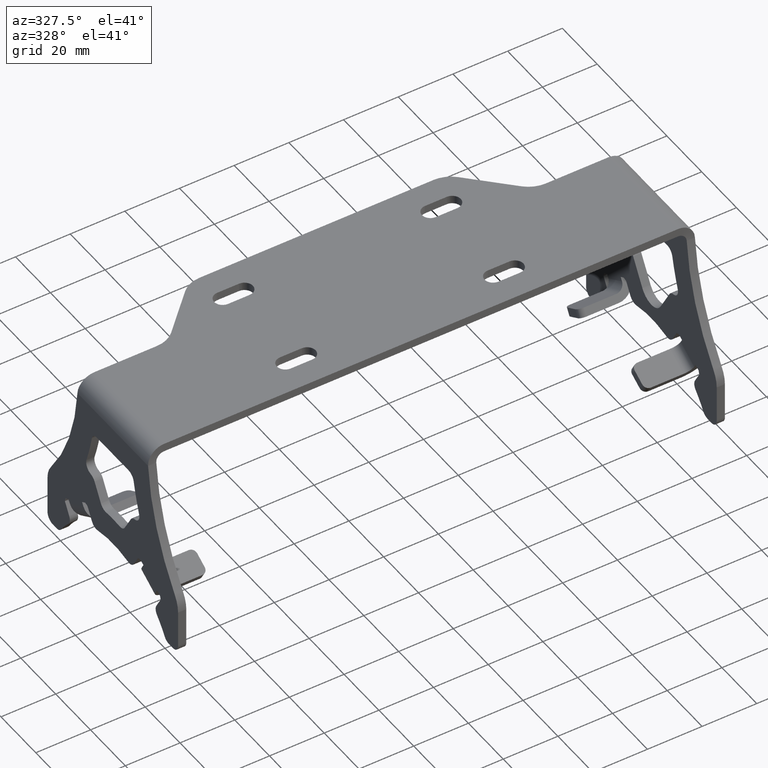
[diagram: clean part render]
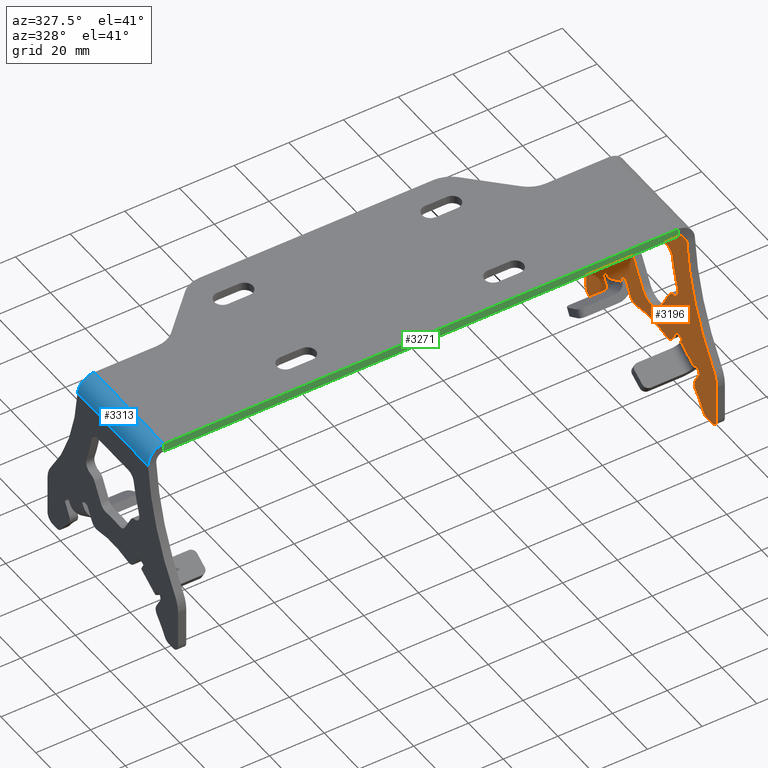
[diagram: same view with three faces highlighted in distinct colors, each labeled with its STEP entity id]
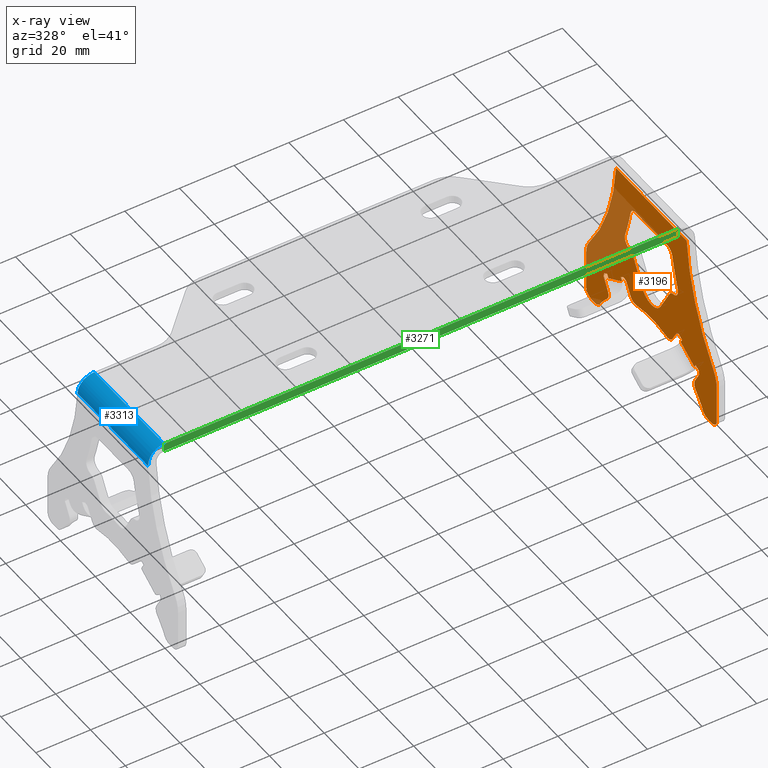
[diagram: x-ray of the same camera — body ghosted, the three highlighted faces saturated]
A machine part, auxiliary view with three faces highlighted in distinct colors.
The next image is the same camera in x-ray (body ghosted, the three faces saturated) — at least one of them is partly hidden behind the body in this view.
Their STEP definitions:

[orange] entity #3196 — the highlighted planar face has unit normal (-1, 0, -0).
#27=FACE_BOUND('',#463,.T.);
#39=CIRCLE('',#3391,6.0000000000246);
#41=CIRCLE('',#3395,10.);
#42=CIRCLE('',#3396,82.4414286425771);
#43=CIRCLE('',#3397,82.4414286425785);
#44=CIRCLE('',#3398,10.);
#45=CIRCLE('',#3399,3.);
#46=CIRCLE('',#3400,3.);
#47=CIRCLE('',#3401,35.5);
#48=CIRCLE('',#3402,3.);
#49=CIRCLE('',#3403,3.);
#50=CIRCLE('',#3404,35.5);
#51=CIRCLE('',#3405,3.);
#52=CIRCLE('',#3406,3.);
#53=CIRCLE('',#3407,35.5);
#54=CIRCLE('',#3408,3.);
#55=CIRCLE('',#3409,3.);
#56=CIRCLE('',#3410,3.);
#57=CIRCLE('',#3411,3.);
#58=CIRCLE('',#3412,92.4414286425785);
#59=CIRCLE('',#3413,3.);
#60=CIRCLE('',#3414,3.);
#61=CIRCLE('',#3415,92.4414286425771);
#62=CIRCLE('',#3416,3.);
#63=CIRCLE('',#3417,3.);
#280=FACE_OUTER_BOUND('',#462,.T.);
#462=EDGE_LOOP('',(#2125,#2126,#2127,#2128,#2129,#2130,#2131,#2132,#2133,
#2134,#2135,#2136,#2137,#2138,#2139,#2140,#2141,#2142,#2143,#2144,#2145,
#2146,#2147,#2148,#2149,#2150,#2151,#2152,#2153,#2154,#2155,#2156,#2157,
#2158,#2159,#2160,#2161,#2162));
#463=EDGE_LOOP('',(#2163,#2164,#2165,#2166,#2167,#2168,#2169,#2170,#2171,
#2172,#2173,#2174,#2175,#2176));
#656=LINE('',#4730,#984);
#658=LINE('',#4739,#986);
#661=LINE('',#4750,#989);
#662=LINE('',#4756,#990);
#663=LINE('',#4760,#991);
#664=LINE('',#4768,#992);
#665=LINE('',#4770,#993);
#666=LINE('',#4772,#994);
#667=LINE('',#4774,#995);
#668=LINE('',#4776,#996);
#669=LINE('',#4778,#997);
#670=LINE('',#4780,#998);
#671=LINE('',#4782,#999);
#672=LINE('',#4784,#1000);
#673=LINE('',#4792,#1001);
#674=LINE('',#4794,#1002);
#675=LINE('',#4796,#1003);
#676=LINE('',#4798,#1004);
#677=LINE('',#4800,#1005);
#678=LINE('',#4802,#1006);
#679=LINE('',#4804,#1007);
#680=LINE('',#4806,#1008);
#681=LINE('',#4808,#1009);
#682=LINE('',#4816,#1010);
#683=LINE('',#4819,#1011);
#684=LINE('',#4821,#1012);
#685=LINE('',#4831,#1013);
#686=LINE('',#4840,#1014);
#984=VECTOR('',#3730,10.);
#986=VECTOR('',#3740,10.);
#989=VECTOR('',#3749,10.);
#990=VECTOR('',#3754,10.);
#991=VECTOR('',#3757,10.);
#992=VECTOR('',#3764,10.);
#993=VECTOR('',#3765,10.);
#994=VECTOR('',#3766,10.);
#995=VECTOR('',#3767,10.);
#996=VECTOR('',#3768,10.);
#997=VECTOR('',#3769,10.);
#998=VECTOR('',#3770,10.);
#999=VECTOR('',#3771,10.);
#1000=VECTOR('',#3772,10.);
#1001=VECTOR('',#3779,10.);
#1002=VECTOR('',#3780,10.);
#1003=VECTOR('',#3781,10.);
#1004=VECTOR('',#3782,10.);
#1005=VECTOR('',#3783,10.);
#1006=VECTOR('',#3784,10.);
#1007=VECTOR('',#3785,10.);
#1008=VECTOR('',#3786,10.);
#1009=VECTOR('',#3787,10.);
#1010=VECTOR('',#3794,10.);
#1011=VECTOR('',#3797,10.);
#1012=VECTOR('',#3798,10.);
#1013=VECTOR('',#3807,10.);
#1014=VECTOR('',#3816,10.);
#1310=VERTEX_POINT('',#4724);
#1312=VERTEX_POINT('',#4728);
#1313=VERTEX_POINT('',#4732);
#1315=VERTEX_POINT('',#4738);
#1317=VERTEX_POINT('',#4744);
#1318=VERTEX_POINT('',#4745);
#1319=VERTEX_POINT('',#4747);
#1320=VERTEX_POINT('',#4749);
#1321=VERTEX_POINT('',#4751);
#1322=VERTEX_POINT('',#4753);
#1323=VERTEX_POINT('',#4755);
#1324=VERTEX_POINT('',#4757);
#1325=VERTEX_POINT('',#4759);
#1326=VERTEX_POINT('',#4761);
#1327=VERTEX_POINT('',#4763);
#1328=VERTEX_POINT('',#4765);
#1329=VERTEX_POINT('',#4767);
#1330=VERTEX_POINT('',#4769);
#1331=VERTEX_POINT('',#4771);
#1332=VERTEX_POINT('',#4773);
#1333=VERTEX_POINT('',#4775);
#1334=VERTEX_POINT('',#4777);
#1335=VERTEX_POINT('',#4779);
#1336=VERTEX_POINT('',#4781);
#1337=VERTEX_POINT('',#4783);
#1338=VERTEX_POINT('',#4785);
#1339=VERTEX_POINT('',#4787);
#1340=VERTEX_POINT('',#4789);
#1341=VERTEX_POINT('',#4791);
#1342=VERTEX_POINT('',#4793);
#1343=VERTEX_POINT('',#4795);
#1344=VERTEX_POINT('',#4797);
#1345=VERTEX_POINT('',#4799);
#1346=VERTEX_POINT('',#4801);
#1347=VERTEX_POINT('',#4803);
#1348=VERTEX_POINT('',#4805);
#1349=VERTEX_POINT('',#4807);
#1350=VERTEX_POINT('',#4809);
#1351=VERTEX_POINT('',#4811);
#1352=VERTEX_POINT('',#4813);
#1353=VERTEX_POINT('',#4815);
#1354=VERTEX_POINT('',#4817);
#1355=VERTEX_POINT('',#4820);
#1356=VERTEX_POINT('',#4822);
#1357=VERTEX_POINT('',#4824);
#1358=VERTEX_POINT('',#4826);
#1359=VERTEX_POINT('',#4828);
#1360=VERTEX_POINT('',#4830);
#1361=VERTEX_POINT('',#4832);
#1362=VERTEX_POINT('',#4834);
#1363=VERTEX_POINT('',#4836);
#1364=VERTEX_POINT('',#4838);
#1624=EDGE_CURVE('',#1310,#1312,#656,.T.);
#1625=EDGE_CURVE('',#1312,#1313,#39,.T.);
#1628=EDGE_CURVE('',#1313,#1315,#658,.T.);
#1631=EDGE_CURVE('',#1317,#1318,#41,.T.);
#1632=EDGE_CURVE('',#1319,#1318,#42,.T.);
#1633=EDGE_CURVE('',#1320,#1319,#661,.T.);
#1634=EDGE_CURVE('',#1321,#1320,#43,.T.);
#1635=EDGE_CURVE('',#1321,#1322,#44,.T.);
#1636=EDGE_CURVE('',#1323,#1322,#662,.T.);
#1637=EDGE_CURVE('',#1323,#1324,#45,.T.);
#1638=EDGE_CURVE('',#1324,#1325,#663,.T.);
#1639=EDGE_CURVE('',#1325,#1326,#46,.T.);
#1640=EDGE_CURVE('',#1327,#1326,#47,.T.);
#1641=EDGE_CURVE('',#1327,#1328,#48,.T.);
#1642=EDGE_CURVE('',#1329,#1328,#664,.T.);
#1643=EDGE_CURVE('',#1329,#1330,#665,.T.);
#1644=EDGE_CURVE('',#1331,#1330,#666,.T.);
#1645=EDGE_CURVE('',#1332,#1331,#667,.T.);
#1646=EDGE_CURVE('',#1333,#1332,#668,.T.);
#1647=EDGE_CURVE('',#1334,#1333,#669,.T.);
#1648=EDGE_CURVE('',#1335,#1334,#670,.T.);
#1649=EDGE_CURVE('',#1335,#1336,#671,.T.);
#1650=EDGE_CURVE('',#1337,#1336,#672,.T.);
#1651=EDGE_CURVE('',#1337,#1338,#49,.T.);
#1652=EDGE_CURVE('',#1339,#1338,#50,.T.);
#1653=EDGE_CURVE('',#1339,#1340,#51,.T.);
#1654=EDGE_CURVE('',#1341,#1340,#673,.T.);
#1655=EDGE_CURVE('',#1341,#1342,#674,.T.);
#1656=EDGE_CURVE('',#1343,#1342,#675,.T.);
#1657=EDGE_CURVE('',#1344,#1343,#676,.T.);
#1658=EDGE_CURVE('',#1345,#1344,#677,.T.);
#1659=EDGE_CURVE('',#1346,#1345,#678,.T.);
#1660=EDGE_CURVE('',#1347,#1346,#679,.T.);
#1661=EDGE_CURVE('',#1347,#1348,#680,.T.);
#1662=EDGE_CURVE('',#1349,#1348,#681,.T.);
#1663=EDGE_CURVE('',#1349,#1350,#52,.T.);
#1664=EDGE_CURVE('',#1351,#1350,#53,.T.);
#1665=EDGE_CURVE('',#1351,#1352,#54,.T.);
#1666=EDGE_CURVE('',#1352,#1353,#682,.T.);
#1667=EDGE_CURVE('',#1353,#1354,#55,.T.);
#1668=EDGE_CURVE('',#1317,#1354,#683,.T.);
#1669=EDGE_CURVE('',#1355,#1315,#684,.T.);
#1670=EDGE_CURVE('',#1355,#1356,#56,.T.);
#1671=EDGE_CURVE('',#1356,#1357,#57,.T.);
#1672=EDGE_CURVE('',#1358,#1357,#58,.T.);
#1673=EDGE_CURVE('',#1358,#1359,#59,.T.);
#1674=EDGE_CURVE('',#1360,#1359,#685,.T.);
#1675=EDGE_CURVE('',#1360,#1361,#60,.T.);
#1676=EDGE_CURVE('',#1362,#1361,#61,.T.);
#1677=EDGE_CURVE('',#1362,#1363,#62,.T.);
#1678=EDGE_CURVE('',#1363,#1364,#63,.T.);
#1679=EDGE_CURVE('',#1310,#1364,#686,.T.);
#2125=ORIENTED_EDGE('',*,*,#1631,.T.);
#2126=ORIENTED_EDGE('',*,*,#1632,.F.);
#2127=ORIENTED_EDGE('',*,*,#1633,.F.);
#2128=ORIENTED_EDGE('',*,*,#1634,.F.);
#2129=ORIENTED_EDGE('',*,*,#1635,.T.);
#2130=ORIENTED_EDGE('',*,*,#1636,.F.);
#2131=ORIENTED_EDGE('',*,*,#1637,.T.);
#2132=ORIENTED_EDGE('',*,*,#1638,.T.);
#2133=ORIENTED_EDGE('',*,*,#1639,.T.);
#2134=ORIENTED_EDGE('',*,*,#1640,.F.);
#2135=ORIENTED_EDGE('',*,*,#1641,.T.);
#2136=ORIENTED_EDGE('',*,*,#1642,.F.);
#2137=ORIENTED_EDGE('',*,*,#1643,.T.);
#2138=ORIENTED_EDGE('',*,*,#1644,.F.);
#2139=ORIENTED_EDGE('',*,*,#1645,.F.);
#2140=ORIENTED_EDGE('',*,*,#1646,.F.);
#2141=ORIENTED_EDGE('',*,*,#1647,.F.);
#2142=ORIENTED_EDGE('',*,*,#1648,.F.);
#2143=ORIENTED_EDGE('',*,*,#1649,.T.);
#2144=ORIENTED_EDGE('',*,*,#1650,.F.);
#2145=ORIENTED_EDGE('',*,*,#1651,.T.);
#2146=ORIENTED_EDGE('',*,*,#1652,.F.);
#2147=ORIENTED_EDGE('',*,*,#1653,.T.);
#2148=ORIENTED_EDGE('',*,*,#1654,.F.);
#2149=ORIENTED_EDGE('',*,*,#1655,.T.);
#2150=ORIENTED_EDGE('',*,*,#1656,.F.);
#2151=ORIENTED_EDGE('',*,*,#1657,.F.);
#2152=ORIENTED_EDGE('',*,*,#1658,.F.);
#2153=ORIENTED_EDGE('',*,*,#1659,.F.);
#2154=ORIENTED_EDGE('',*,*,#1660,.F.);
#2155=ORIENTED_EDGE('',*,*,#1661,.T.);
#2156=ORIENTED_EDGE('',*,*,#1662,.F.);
#2157=ORIENTED_EDGE('',*,*,#1663,.T.);
#2158=ORIENTED_EDGE('',*,*,#1664,.F.);
#2159=ORIENTED_EDGE('',*,*,#1665,.T.);
#2160=ORIENTED_EDGE('',*,*,#1666,.T.);
#2161=ORIENTED_EDGE('',*,*,#1667,.T.);
#2162=ORIENTED_EDGE('',*,*,#1668,.F.);
#2163=ORIENTED_EDGE('',*,*,#1624,.T.);
#2164=ORIENTED_EDGE('',*,*,#1625,.T.);
#2165=ORIENTED_EDGE('',*,*,#1628,.T.);
#2166=ORIENTED_EDGE('',*,*,#1669,.F.);
#2167=ORIENTED_EDGE('',*,*,#1670,.T.);
#2168=ORIENTED_EDGE('',*,*,#1671,.T.);
#2169=ORIENTED_EDGE('',*,*,#1672,.F.);
#2170=ORIENTED_EDGE('',*,*,#1673,.T.);
#2171=ORIENTED_EDGE('',*,*,#1674,.F.);
#2172=ORIENTED_EDGE('',*,*,#1675,.T.);
#2173=ORIENTED_EDGE('',*,*,#1676,.F.);
#2174=ORIENTED_EDGE('',*,*,#1677,.T.);
#2175=ORIENTED_EDGE('',*,*,#1678,.T.);
#2176=ORIENTED_EDGE('',*,*,#1679,.F.);
#3099=PLANE('',#3394);
#3196=ADVANCED_FACE('',(#280,#27),#3099,.T.);
#3391=AXIS2_PLACEMENT_3D('',#4733,#3733,#3734);
#3394=AXIS2_PLACEMENT_3D('',#4743,#3743,#3744);
#3395=AXIS2_PLACEMENT_3D('',#4746,#3745,#3746);
#3396=AXIS2_PLACEMENT_3D('',#4748,#3747,#3748);
#3397=AXIS2_PLACEMENT_3D('',#4752,#3750,#3751);
#3398=AXIS2_PLACEMENT_3D('',#4754,#3752,#3753);
#3399=AXIS2_PLACEMENT_3D('',#4758,#3755,#3756);
#3400=AXIS2_PLACEMENT_3D('',#4762,#3758,#3759);
#3401=AXIS2_PLACEMENT_3D('',#4764,#3760,#3761);
#3402=AXIS2_PLACEMENT_3D('',#4766,#3762,#3763);
#3403=AXIS2_PLACEMENT_3D('',#4786,#3773,#3774);
#3404=AXIS2_PLACEMENT_3D('',#4788,#3775,#3776);
#3405=AXIS2_PLACEMENT_3D('',#4790,#3777,#3778);
#3406=AXIS2_PLACEMENT_3D('',#4810,#3788,#3789);
#3407=AXIS2_PLACEMENT_3D('',#4812,#3790,#3791);
#3408=AXIS2_PLACEMENT_3D('',#4814,#3792,#3793);
#3409=AXIS2_PLACEMENT_3D('',#4818,#3795,#3796);
#3410=AXIS2_PLACEMENT_3D('',#4823,#3799,#3800);
#3411=AXIS2_PLACEMENT_3D('',#4825,#3801,#3802);
#3412=AXIS2_PLACEMENT_3D('',#4827,#3803,#3804);
#3413=AXIS2_PLACEMENT_3D('',#4829,#3805,#3806);
#3414=AXIS2_PLACEMENT_3D('',#4833,#3808,#3809);
#3415=AXIS2_PLACEMENT_3D('',#4835,#3810,#3811);
#3416=AXIS2_PLACEMENT_3D('',#4837,#3812,#3813);
#3417=AXIS2_PLACEMENT_3D('',#4839,#3814,#3815);
#3730=DIRECTION('',(1.5935514581554E-15,0.499999954605923,-0.86602542999272));
#3733=DIRECTION('center_axis',(1.,0.,1.84007467098142E-15));
#3734=DIRECTION('ref_axis',(0.,-0.86602542999272,-0.499999954605923));
#3740=DIRECTION('',(-1.59355136170936E-15,0.500000045389974,0.866025377578523));
#3743=DIRECTION('center_axis',(-1.,0.,-1.84007467098142E-15));
#3744=DIRECTION('ref_axis',(0.,-1.,0.));
#3745=DIRECTION('center_axis',(-1.,0.,-1.84007467098142E-15));
#3746=DIRECTION('ref_axis',(0.,-0.951496437087984,0.307659763714515));
#3747=DIRECTION('center_axis',(-1.,0.,-1.84007467098142E-15));
#3748=DIRECTION('ref_axis',(0.,1.,0.));
#3749=DIRECTION('',(0.,-1.,0.));
#3750=DIRECTION('center_axis',(-1.,0.,-1.84007467098142E-15));
#3751=DIRECTION('ref_axis',(1.13352851147788E-15,-0.787728084190875,-0.616023104580481));
#3752=DIRECTION('center_axis',(-1.,0.,-1.84007467098142E-15));
#3753=DIRECTION('ref_axis',(0.,0.951496437087981,0.307659763714524));
#3754=DIRECTION('',(-1.84007467098142E-15,8.88178419700124E-16,1.));
#3755=DIRECTION('center_axis',(-1.,0.,-1.84007467098142E-15));
#3756=DIRECTION('ref_axis',(0.,0.707106781186548,-0.707106781186548));
#3757=DIRECTION('',(0.,-1.,0.));
#3758=DIRECTION('center_axis',(-1.,0.,-1.84007467098142E-15));
#3759=DIRECTION('ref_axis',(0.,-0.476731294622794,-0.879049072991534));
#3760=DIRECTION('center_axis',(-1.,0.,-1.84007467098142E-15));
#3761=DIRECTION('ref_axis',(-1.99394413079214E-15,0.671677242289599,0.740843898665731));
#3762=DIRECTION('center_axis',(-1.,0.,-1.84007467098142E-15));
#3763=DIRECTION('ref_axis',(0.,-0.992360624285522,-0.123370950258351));
#3764=DIRECTION('',(1.59355140993019E-15,-0.500000000000014,-0.866025403784431));
#3765=DIRECTION('',(-1.77737564700129E-15,-0.258819045102563,0.965925826289057));
#3766=DIRECTION('',(9.20037335490711E-16,0.866025403784438,-0.500000000000001));
#3767=DIRECTION('',(-1.5935514099302E-15,0.5,0.866025403784439));
#3768=DIRECTION('',(9.20037335490711E-16,0.866025403784438,-0.500000000000001));
#3769=DIRECTION('',(1.5935514099302E-15,-0.5,-0.866025403784439));
#3770=DIRECTION('',(9.20037335490711E-16,0.866025403784438,-0.500000000000001));
#3771=DIRECTION('',(4.76246369260818E-16,-0.965925826289058,-0.25881904510256));
#3772=DIRECTION('',(-1.59355140993019E-15,0.500000000000011,0.866025403784432));
#3773=DIRECTION('center_axis',(-1.,0.,-1.84007467098142E-15));
#3774=DIRECTION('ref_axis',(0.,0.389337935129989,-0.921094985475829));
#3775=DIRECTION('center_axis',(-1.,0.,-1.84007467098142E-15));
#3776=DIRECTION('ref_axis',(-2.56256027656686E-15,-0.305751015338425,0.952111504299534));
#3777=DIRECTION('center_axis',(-1.,0.,-1.84007467098142E-15));
#3778=DIRECTION('ref_axis',(0.,-0.389337935130004,-0.921094985475822));
#3779=DIRECTION('',(1.59355140993022E-15,0.499999999999985,-0.866025403784447));
#3780=DIRECTION('',(-4.76246369260647E-16,-0.965925826289083,0.258819045102467));
#3781=DIRECTION('',(-9.20037335490706E-16,0.86602540378444,0.499999999999998));
#3782=DIRECTION('',(-1.5935514099302E-15,-0.499999999999999,0.866025403784439));
#3783=DIRECTION('',(-9.20037335490708E-16,0.866025403784439,0.499999999999999));
#3784=DIRECTION('',(1.5935514099302E-15,0.499999999999999,-0.866025403784439));
#3785=DIRECTION('',(-9.20037335490706E-16,0.86602540378444,0.499999999999998));
#3786=DIRECTION('',(1.77737564700131E-15,-0.258819045102533,-0.965925826289065));
#3787=DIRECTION('',(-1.5935514099302E-15,-0.500000000000002,0.866025403784437));
#3788=DIRECTION('center_axis',(-1.,0.,-1.84007467098142E-15));
#3789=DIRECTION('ref_axis',(0.,0.992360624285521,-0.123370950258361));
#3790=DIRECTION('center_axis',(-1.,0.,-1.84007467098142E-15));
#3791=DIRECTION('ref_axis',(-1.36467874985934E-15,-0.861921198917985,0.507042253521127));
#3792=DIRECTION('center_axis',(-1.,0.,-1.84007467098142E-15));
#3793=DIRECTION('ref_axis',(0.,0.476731294622795,-0.879049072991533));
#3794=DIRECTION('',(0.,-1.,0.));
#3795=DIRECTION('center_axis',(-1.,0.,-1.84007467098142E-15));
#3796=DIRECTION('ref_axis',(0.,-0.707106781186548,-0.707106781186548));
#3797=DIRECTION('',(1.84007467098142E-15,0.,-1.));
#3798=DIRECTION('',(1.5935514099302E-15,-0.5,-0.866025403784438));
#3799=DIRECTION('center_axis',(-1.,0.,-1.84007467098142E-15));
#3800=DIRECTION('ref_axis',(0.,-0.552956745400652,0.833209960163654));
#3801=DIRECTION('center_axis',(1.,0.,1.84007467098142E-15));
#3802=DIRECTION('ref_axis',(0.,0.944754534548987,0.327778689742222));
#3803=DIRECTION('center_axis',(1.,0.,1.84007467098142E-15));
#3804=DIRECTION('ref_axis',(5.54725221084057E-16,-0.911087528399442,-0.412212949329586));
#3805=DIRECTION('center_axis',(1.,0.,1.84007467098142E-15));
#3806=DIRECTION('ref_axis',(0.,0.62955994286868,0.776951915072731));
#3807=DIRECTION('',(7.08305686973369E-31,1.,-3.84933121543154E-16));
#3808=DIRECTION('center_axis',(1.,0.,1.84007467098142E-15));
#3809=DIRECTION('ref_axis',(0.,-0.629559879154679,0.776951966699838));
#3810=DIRECTION('center_axis',(1.,0.,1.84007467098142E-15));
#3811=DIRECTION('ref_axis',(2.44361462179158E-16,0.983375525815702,-0.181583521352272));
#3812=DIRECTION('center_axis',(1.,0.,1.84007467098142E-15));
#3813=DIRECTION('ref_axis',(0.,-0.944754471799468,0.327778870604725));
#3814=DIRECTION('center_axis',(-1.,0.,-1.84007467098142E-15));
#3815=DIRECTION('ref_axis',(0.,0.552956208785422,0.833210316286142));
#3816=DIRECTION('',(-1.5935514099302E-15,-0.499999999999998,0.86602540378444));
#4724=CARTESIAN_POINT('',(97.,-16.8218164096081,-38.1842673786516));
#4728=CARTESIAN_POINT('',(97.,-15.1961532123504,-40.9999997276478));
#4730=CARTESIAN_POINT('',(97.,-43.3446483379951,7.75462988836384));
#4732=CARTESIAN_POINT('',(97.,-4.80384836688034,-41.0000002723521));
#4733=CARTESIAN_POINT('Origin',(96.9999999999998,-10.0000006323728,-38.));
#4738=CARTESIAN_POINT('',(97.,-3.17818359039188,-38.1842673786517));
#4739=CARTESIAN_POINT('',(96.9999999999999,28.4567822237284,16.6090948293606));
#4743=CARTESIAN_POINT('Origin',(96.9999999999998,0.,97.785840131754));
#4744=CARTESIAN_POINT('',(97.0000000000001,-47.5,-50.336244108325));
#4745=CARTESIAN_POINT('',(97.0000000000001,-45.6069093958226,-44.4815007281311));
#4746=CARTESIAN_POINT('Origin',(97.0000000000001,-37.5,-50.336244108325));
#4747=CARTESIAN_POINT('',(97.,-30.2797494342295,-2.99999999999999));
#4748=CARTESIAN_POINT('Origin',(97.,-112.441428642577,3.78584013175396));
#4749=CARTESIAN_POINT('',(97.,10.279748169484,-2.99999999999999));
#4750=CARTESIAN_POINT('',(97.,-5.,-2.99999999999999));
#4751=CARTESIAN_POINT('',(97.0000000000001,25.6069093958225,-44.4815160414359));
#4752=CARTESIAN_POINT('Origin',(97.,92.4414286425771,3.78582481845143));
#4753=CARTESIAN_POINT('',(97.0000000000001,27.5,-50.3362594216299));
#4754=CARTESIAN_POINT('Origin',(97.0000000000001,17.5,-50.3362594216299));
#4755=CARTESIAN_POINT('',(97.0000000000001,27.5,-64.));
#4756=CARTESIAN_POINT('',(96.9999999999999,27.5000000000001,15.392920065877));
#4757=CARTESIAN_POINT('',(97.0000000000001,24.5,-67.));
#4758=CARTESIAN_POINT('Origin',(97.0000000000001,24.5,-64.));
#4759=CARTESIAN_POINT('',(97.0000000000001,22.2684056005251,-67.));
#4760=CARTESIAN_POINT('',(97.0000000000001,-2.79776202205539E-13,-67.));
#4761=CARTESIAN_POINT('',(97.0000000000003,19.7539843848997,-65.6363636363636));
#4762=CARTESIAN_POINT('Origin',(97.0000000000002,22.2684056005251,-64.));
#4763=CARTESIAN_POINT('',(97.0000000000002,15.4618225989663,-60.2624659689214));
#4764=CARTESIAN_POINT('Origin',(97.0000000000003,-10.,-85.));
#4765=CARTESIAN_POINT('',(97.0000000000001,15.0154497058355,-56.6719701353091));
#4766=CARTESIAN_POINT('Origin',(97.0000000000002,17.6135259171888,-58.1719701353092));
#4767=CARTESIAN_POINT('',(97.0000000000001,17.4951905283834,-52.3769330410537));
#4768=CARTESIAN_POINT('',(97.,45.9941615663776,-3.01526723981558));
#4769=CARTESIAN_POINT('',(97.0000000000001,17.1291651245988,-51.0109076372692));
#4770=CARTESIAN_POINT('',(96.9999999999999,-1.95264024085537,20.2033594867339));
#4771=CARTESIAN_POINT('',(97.0000000000001,15.39711431703,-50.0109076372692));
#4772=CARTESIAN_POINT('',(97.,-22.3757380930301,-28.2027411302609));
#4773=CARTESIAN_POINT('',(97.0000000000001,14.64711431703,-51.3099457429458));
#4774=CARTESIAN_POINT('',(97.,43.596409568575,-1.16829552395743));
#4775=CARTESIAN_POINT('',(97.,6.85288568297002,-46.8099457429458));
#4776=CARTESIAN_POINT('',(97.,-27.02285241006,-27.2517792359376));
#4777=CARTESIAN_POINT('',(97.,7.60288568297002,-45.5109076372692));
#4778=CARTESIAN_POINT('',(97.,37.6771809345151,6.57929974023423));
#4779=CARTESIAN_POINT('',(97.0000000000001,5.87083487540114,-44.5109076372692));
#4780=CARTESIAN_POINT('',(97.,-27.5718905157367,-25.2027411302609));
#4781=CARTESIAN_POINT('',(97.0000000000001,4.50480947161677,-44.8769330410536));
#4782=CARTESIAN_POINT('',(97.,20.577640240855,-40.5702310163535));
#4783=CARTESIAN_POINT('',(97.0000000000001,2.02506864906884,-49.1719701353092));
#4784=CARTESIAN_POINT('',(97.,33.2041047231622,4.83170447604175));
#4785=CARTESIAN_POINT('',(97.0000000000002,-1.30757840158696,-50.5806477871032));
#4786=CARTESIAN_POINT('Origin',(97.0000000000002,-0.573007562284457,-47.6719701353092));
#4787=CARTESIAN_POINT('',(97.0000000000002,-18.6924215984129,-50.5806477871032));
#4788=CARTESIAN_POINT('Origin',(97.0000000000003,-10.,-85.));
#4789=CARTESIAN_POINT('',(97.0000000000001,-22.0250686490687,-49.1719701353091));
#4790=CARTESIAN_POINT('Origin',(97.0000000000002,-19.4269924377154,-47.6719701353091));
#4791=CARTESIAN_POINT('',(97.0000000000001,-24.5048094716165,-44.8769330410535));
#4792=CARTESIAN_POINT('',(97.,-50.5037805096099,0.154605741264606));
#4793=CARTESIAN_POINT('',(97.,-25.8708348754011,-44.5109076372691));
#4794=CARTESIAN_POINT('',(97.0000000000001,-31.2475132219263,-43.0702310163561));
#4795=CARTESIAN_POINT('',(97.,-27.6028856829699,-45.5109076372691));
#4796=CARTESIAN_POINT('',(97.,13.77285241006,-21.6226141113389));
#4797=CARTESIAN_POINT('',(97.,-26.8528856829699,-46.8099457429458));
#4798=CARTESIAN_POINT('',(97.,-53.3021809345149,-0.998422542879465));
#4799=CARTESIAN_POINT('',(97.0000000000001,-34.6471143170299,-51.3099457429458));
#4800=CARTESIAN_POINT('',(97.,10.6257380930301,-25.1716522170155));
#4801=CARTESIAN_POINT('',(97.0000000000001,-35.3971143170299,-50.0109076372691));
#4802=CARTESIAN_POINT('',(97.,-62.9714095685749,-2.25082727868779));
#4803=CARTESIAN_POINT('',(97.0000000000001,-37.1291651245987,-51.0109076372691));
#4804=CARTESIAN_POINT('',(97.,8.57669998735337,-24.6226141113389));
#4805=CARTESIAN_POINT('',(97.0000000000001,-37.4951905283832,-52.3769330410535));
#4806=CARTESIAN_POINT('',(96.9999999999999,-17.3774867780688,22.703359486735));
#4807=CARTESIAN_POINT('',(97.0000000000001,-35.0154497058353,-56.6719701353091));
#4808=CARTESIAN_POINT('',(97.,-63.6944857799283,-6.99842254287971));
#4809=CARTESIAN_POINT('',(97.0000000000002,-35.4618225989662,-60.2624659689213));
#4810=CARTESIAN_POINT('Origin',(97.0000000000002,-37.6135259171887,-58.1719701353091));
#4811=CARTESIAN_POINT('',(97.0000000000003,-39.7539843848997,-65.6363636363636));
#4812=CARTESIAN_POINT('Origin',(97.0000000000003,-10.,-85.));
#4813=CARTESIAN_POINT('',(97.0000000000001,-42.2684056005251,-67.));
#4814=CARTESIAN_POINT('Origin',(97.0000000000002,-42.2684056005251,-64.));
#4815=CARTESIAN_POINT('',(97.0000000000001,-44.5,-67.));
#4816=CARTESIAN_POINT('',(97.0000000000001,-2.79776202205539E-13,-67.));
#4817=CARTESIAN_POINT('',(97.0000000000001,-47.5,-64.));
#4818=CARTESIAN_POINT('Origin',(97.0000000000001,-44.5,-64.));
#4819=CARTESIAN_POINT('',(96.9999999999999,-47.5,25.3929277225283));
#4820=CARTESIAN_POINT('',(97.,0.42041512979663,-31.9513115592329));
#4821=CARTESIAN_POINT('',(97.,26.1688506853173,12.6462870383419));
#4822=CARTESIAN_POINT('',(97.,2.64559874490872,-30.4745765841858));
#4823=CARTESIAN_POINT('Origin',(97.,3.01849134114994,-33.4513115592329));
#4824=CARTESIAN_POINT('',(97.,5.10696975231447,-26.5145055399121));
#4825=CARTESIAN_POINT('Origin',(97.,2.27270614866751,-27.4978416091387));
#4826=CARTESIAN_POINT('',(97.,2.00823396877745,-15.3780743299889));
#4827=CARTESIAN_POINT('Origin',(96.9999999999999,92.4414286425771,3.78582481845139));
#4828=CARTESIAN_POINT('',(97.,-0.92659285081197,-13.));
#4829=CARTESIAN_POINT('Origin',(97.,-0.926592850811971,-16.));
#4830=CARTESIAN_POINT('',(97.,-19.0734103942668,-13.));
#4831=CARTESIAN_POINT('',(97.,0.768393658188163,-13.));
#4832=CARTESIAN_POINT('',(97.,-22.008237111854,-15.3780738486475));
#4833=CARTESIAN_POINT('Origin',(97.,-19.0734103942668,-16.));
#4834=CARTESIAN_POINT('',(97.,-25.106975552971,-26.5145069457973));
#4835=CARTESIAN_POINT('Origin',(96.9999999999999,-112.441428642577,3.78584013175393));
#4836=CARTESIAN_POINT('',(97.,-22.6456008995795,-30.4745790129667));
#4837=CARTESIAN_POINT('Origin',(97.,-22.2727121375726,-27.4978435576115));
#4838=CARTESIAN_POINT('',(97.,-20.4204134502331,-31.951314468322));
#4839=CARTESIAN_POINT('Origin',(97.,-23.0184896615864,-33.451314468322));
#4840=CARTESIAN_POINT('',(96.9999999999999,-46.4188506853172,13.0792997402345));

[blue] entity #3313 — the highlighted cylindrical surface (edge-blend (fillet) strip) has radius 6 mm, axis along (0, -1, 0).
#25=B_SPLINE_CURVE_WITH_KNOTS('',3,(#5491,#5492,#5493,#5494,#5495,#5496,
#5497,#5498,#5499,#5500),.UNSPECIFIED.,.F.,.F.,(4,3,3,4),(-1.11634273717945,
-0.711057347590965,-0.440865732058597,-0.170674739038915),.UNSPECIFIED.);
#26=B_SPLINE_CURVE_WITH_KNOTS('',3,(#5501,#5502,#5503,#5504,#5505,#5506,
#5507,#5508,#5509,#5510),.UNSPECIFIED.,.F.,.F.,(4,3,3,4),(0.170353925101809,
0.440572580042178,0.710792119970919,1.11612076097288),.UNSPECIFIED.);
#246=CYLINDRICAL_SURFACE('',#3603,6.);
#397=FACE_OUTER_BOUND('',#589,.T.);
#589=EDGE_LOOP('',(#2753,#2754,#2755,#2756));
#845=LINE('',#5377,#1173);
#878=LINE('',#5490,#1206);
#1173=VECTOR('',#4291,10.);
#1206=VECTOR('',#4380,10.);
#1467=VERTEX_POINT('',#5280);
#1492=VERTEX_POINT('',#5375);
#1519=VERTEX_POINT('',#5488);
#1520=VERTEX_POINT('',#5489);
#1905=EDGE_CURVE('',#1492,#1467,#845,.T.);
#1948=EDGE_CURVE('',#1519,#1520,#878,.T.);
#1949=EDGE_CURVE('',#1519,#1467,#25,.T.);
#1950=EDGE_CURVE('',#1520,#1492,#26,.T.);
#2753=ORIENTED_EDGE('',*,*,#1948,.F.);
#2754=ORIENTED_EDGE('',*,*,#1949,.T.);
#2755=ORIENTED_EDGE('',*,*,#1905,.F.);
#2756=ORIENTED_EDGE('',*,*,#1950,.F.);
#3313=ADVANCED_FACE('',(#397),#246,.T.);
#3603=AXIS2_PLACEMENT_3D('',#5487,#4378,#4379);
#4291=DIRECTION('',(0.,-1.,0.));
#4378=DIRECTION('center_axis',(0.,-1.,0.));
#4379=DIRECTION('ref_axis',(0.,0.,1.));
#4380=DIRECTION('',(0.,1.,0.));
#5280=CARTESIAN_POINT('',(-94.,-30.,3.));
#5375=CARTESIAN_POINT('',(-94.,10.,3.));
#5377=CARTESIAN_POINT('',(-94.,-15.,3.));
#5487=CARTESIAN_POINT('Origin',(-94.,-10.,-3.));
#5488=CARTESIAN_POINT('',(-100.,-30.2797494342295,-2.99999999999999));
#5489=CARTESIAN_POINT('',(-100.,10.279748169484,-2.99999999999999));
#5490=CARTESIAN_POINT('',(-100.,-5.,-2.99999999999999));
#5491=CARTESIAN_POINT('Ctrl Pts',(-99.9999999999985,-30.2797494342296,-3.00000000000036));
#5492=CARTESIAN_POINT('Ctrl Pts',(-99.9999998038906,-30.1998664353137,-1.65665509711635));
#5493=CARTESIAN_POINT('Ctrl Pts',(-99.5293154073413,-30.1370645129924,-0.316059058435397));
#5494=CARTESIAN_POINT('Ctrl Pts',(-98.6921960368435,-30.0913820495904,0.737180264436496));
#5495=CARTESIAN_POINT('Ctrl Pts',(-98.1341136560849,-30.0609269211669,1.43934333643356));
#5496=CARTESIAN_POINT('Ctrl Pts',(-97.4131696524474,-30.0380805175121,2.01379103078117));
#5497=CARTESIAN_POINT('Ctrl Pts',(-96.6042939560188,-30.0228487784462,2.40395542923244));
#5498=CARTESIAN_POINT('Ctrl Pts',(-95.7954201232134,-30.0076170744738,2.79411892875763));
#5499=CARTESIAN_POINT('Ctrl Pts',(-94.8986150028,-30.0000000000024,2.99999998155094));
#5500=CARTESIAN_POINT('Ctrl Pts',(-93.9999999999972,-30.,2.99999999999993));
#5501=CARTESIAN_POINT('Ctrl Pts',(-99.9999999999934,10.2797481694843,-3.00000000000658));
#5502=CARTESIAN_POINT('Ctrl Pts',(-99.9999999737276,10.2264929267207,-2.10443618745056));
#5503=CARTESIAN_POINT('Ctrl Pts',(-99.7954812521177,10.1808288797046,-1.20971399443551));
#5504=CARTESIAN_POINT('Ctrl Pts',(-99.406754781,10.1427683497495,-0.401594493106957));
#5505=CARTESIAN_POINT('Ctrl Pts',(-99.018027036771,10.1047076951431,0.406527654879584));
#5506=CARTESIAN_POINT('Ctrl Pts',(-98.4450903364411,10.074250607402,1.12804654391679));
#5507=CARTESIAN_POINT('Ctrl Pts',(-97.7432854492552,10.0514059207382,1.68730613680764));
#5508=CARTESIAN_POINT('Ctrl Pts',(-96.6905798556974,10.0171389472913,2.52619414177403));
#5509=CARTESIAN_POINT('Ctrl Pts',(-95.3479217986991,9.99999981973813,2.99999993536154));
#5510=CARTESIAN_POINT('Ctrl Pts',(-93.9999999999999,10.,2.99999999999338));

[green] entity #3271 — the highlighted planar face has unit normal (0, -1, 0).
#355=FACE_OUTER_BOUND('',#543,.T.);
#543=EDGE_LOOP('',(#2553,#2554,#2555,#2556));
#721=LINE('',#5021,#1049);
#793=LINE('',#5227,#1121);
#808=LINE('',#5281,#1136);
#809=LINE('',#5282,#1137);
#1049=VECTOR('',#3899,10.);
#1121=VECTOR('',#4145,10.);
#1136=VECTOR('',#4186,10.);
#1137=VECTOR('',#4187,10.);
#1389=VERTEX_POINT('',#4916);
#1394=VERTEX_POINT('',#4958);
#1441=VERTEX_POINT('',#5226);
#1467=VERTEX_POINT('',#5280);
#1726=EDGE_CURVE('',#1389,#1394,#721,.T.);
#1829=EDGE_CURVE('',#1441,#1389,#793,.T.);
#1856=EDGE_CURVE('',#1467,#1394,#808,.T.);
#1857=EDGE_CURVE('',#1467,#1441,#809,.T.);
#2553=ORIENTED_EDGE('',*,*,#1726,.T.);
#2554=ORIENTED_EDGE('',*,*,#1856,.F.);
#2555=ORIENTED_EDGE('',*,*,#1857,.T.);
#2556=ORIENTED_EDGE('',*,*,#1829,.T.);
#3139=PLANE('',#3541);
#3271=ADVANCED_FACE('',(#355),#3139,.T.);
#3541=AXIS2_PLACEMENT_3D('',#5279,#4184,#4185);
#3899=DIRECTION('',(0.,0.,1.));
#4145=DIRECTION('',(1.,0.,0.));
#4184=DIRECTION('center_axis',(0.,-1.,0.));
#4185=DIRECTION('ref_axis',(1.,0.,0.));
#4186=DIRECTION('',(1.,0.,0.));
#4187=DIRECTION('',(0.,0.,-1.));
#4916=CARTESIAN_POINT('',(94.,-30.,0.));
#4958=CARTESIAN_POINT('',(94.,-30.,3.));
#5021=CARTESIAN_POINT('',(94.,-30.,0.75));
#5226=CARTESIAN_POINT('',(-94.,-30.,0.));
#5227=CARTESIAN_POINT('',(-100.,-30.,0.));
#5279=CARTESIAN_POINT('Origin',(-100.,-30.,0.));
#5280=CARTESIAN_POINT('',(-94.,-30.,3.));
#5281=CARTESIAN_POINT('',(-100.,-30.,3.));
#5282=CARTESIAN_POINT('',(-94.,-30.,0.));